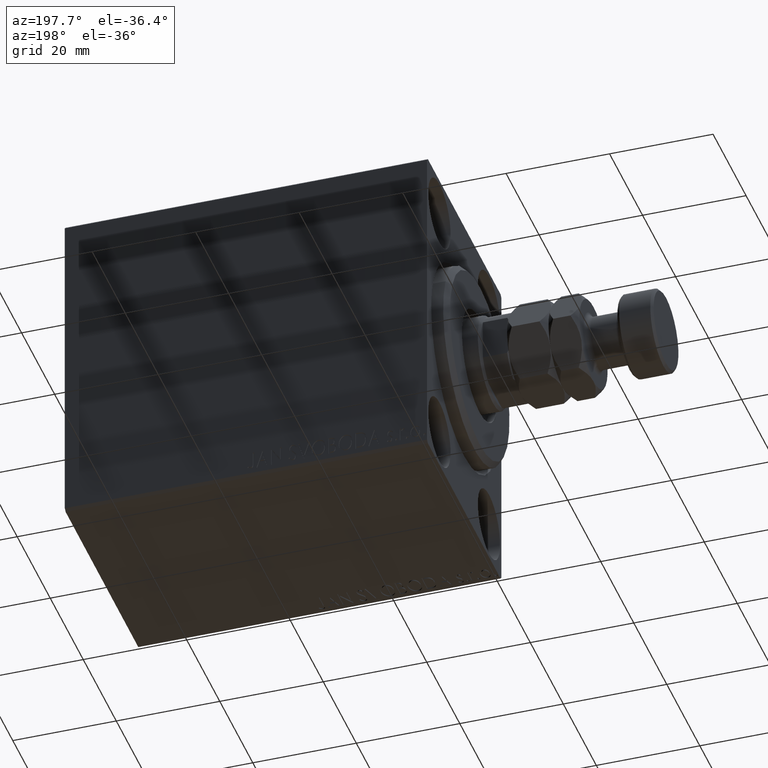
[diagram: clean part render]
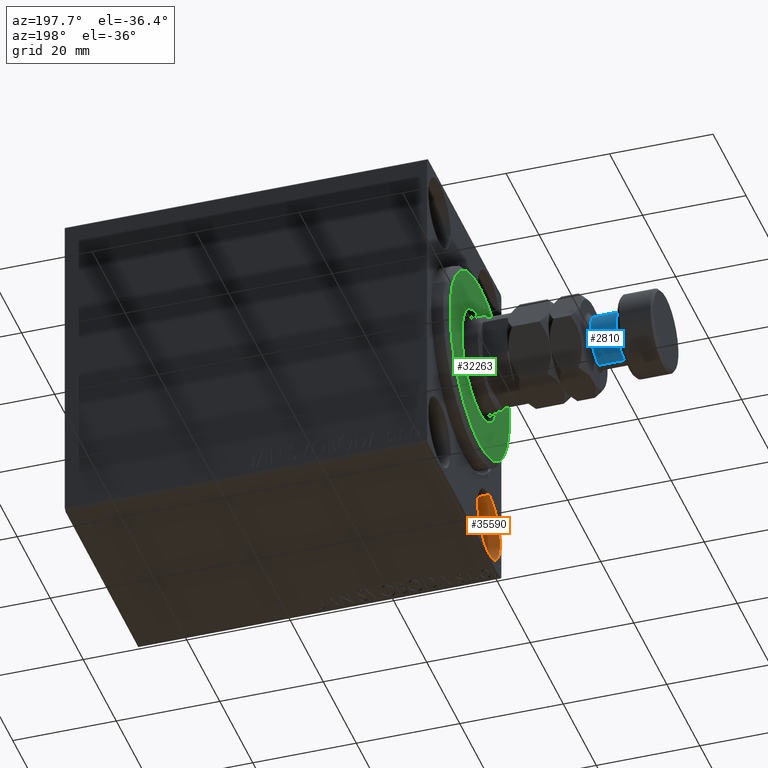
[diagram: same view with three faces highlighted in distinct colors, each labeled with its STEP entity id]
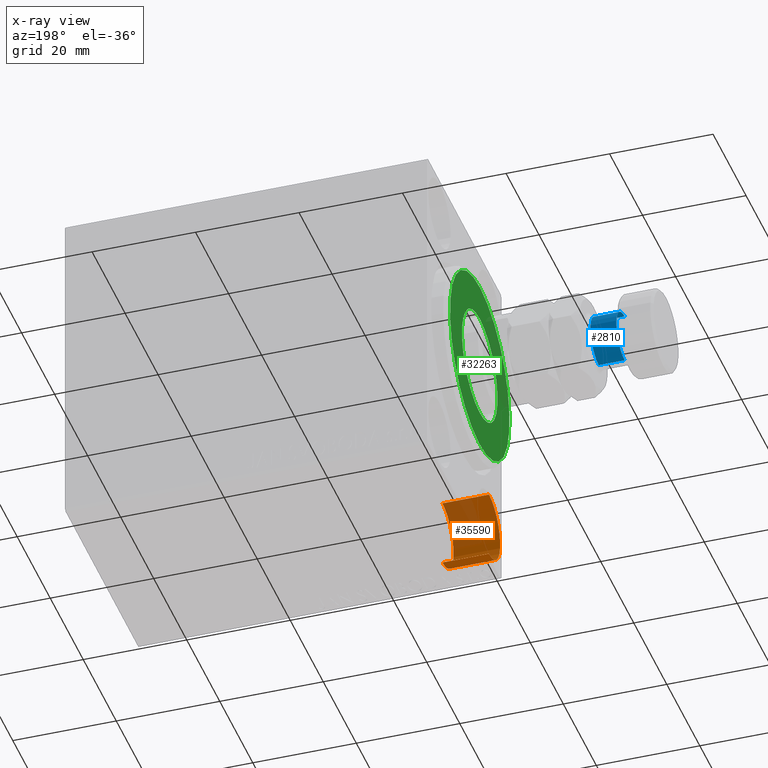
[diagram: x-ray of the same camera — body ghosted, the three highlighted faces saturated]
A machine part, auxiliary view with three faces highlighted in distinct colors.
The next image is the same camera in x-ray (body ghosted, the three faces saturated) — at least one of them is partly hidden behind the body in this view.
Their STEP definitions:

[orange] entity #35590 — the highlighted cylindrical surface (partial cylindrical patch) has radius 6.75 mm, axis along (-1, -0, -0).
#357 = CIRCLE ( 'NONE', #30429, 6.749999999999999112 ) ;
#2579 = CARTESIAN_POINT ( 'NONE',  ( 0.000000000000000000, -15.00000000000000355, -18.25000000000000355 ) ) ;
#3847 = DIRECTION ( 'NONE',  ( 0.000000000000000000, 0.000000000000000000, 1.000000000000000000 ) ) ;
#3887 = EDGE_CURVE ( 'NONE', #39911, #4370, #23063, .T. ) ;
#3963 = EDGE_CURVE ( 'NONE', #26078, #39911, #4737, .T. ) ;
#4370 = VERTEX_POINT ( 'NONE', #2579 ) ;
#4737 = LINE ( 'NONE', #26086, #40693 ) ;
#6359 = CARTESIAN_POINT ( 'NONE',  ( 0.000000000000000000, -15.00000000000000355, -31.75000000000000000 ) ) ;
#7501 = FACE_OUTER_BOUND ( 'NONE', #30754, .T. ) ;
#10427 = DIRECTION ( 'NONE',  ( 0.000000000000000000, 0.000000000000000000, 1.000000000000000000 ) ) ;
#11277 = VERTEX_POINT ( 'NONE', #12747 ) ;
#12747 = CARTESIAN_POINT ( 'NONE',  ( 9.000000000000000000, -15.00000000000000355, -18.25000000000000355 ) ) ;
#17314 = CARTESIAN_POINT ( 'NONE',  ( 9.000000000000000000, -15.00000000000000355, -25.00000000000000000 ) ) ;
#18360 = EDGE_CURVE ( 'NONE', #11277, #4370, #27211, .T. ) ;
#19737 = CARTESIAN_POINT ( 'NONE',  ( 9.000000000000000000, -15.00000000000000355, -31.75000000000000000 ) ) ;
#21048 = DIRECTION ( 'NONE',  ( -1.000000000000000000, -0.000000000000000000, -0.000000000000000000 ) ) ;
#21507 = CYLINDRICAL_SURFACE ( 'NONE', #38622, 6.749999999999999112 ) ;
#23063 = CIRCLE ( 'NONE', #45093, 6.749999999999999112 ) ;
#25189 = CARTESIAN_POINT ( 'NONE',  ( 0.000000000000000000, -15.00000000000000355, -25.00000000000000000 ) ) ;
#26078 = VERTEX_POINT ( 'NONE', #19737 ) ;
#26086 = CARTESIAN_POINT ( 'NONE',  ( 9.000000000000000000, -15.00000000000000355, -31.75000000000000000 ) ) ;
#27211 = LINE ( 'NONE', #30216, #33075 ) ;
#27294 = ORIENTED_EDGE ( 'NONE', *, *, #34565, .F. ) ;
#27680 = ORIENTED_EDGE ( 'NONE', *, *, #3963, .T. ) ;
#30216 = CARTESIAN_POINT ( 'NONE',  ( 9.000000000000000000, -15.00000000000000355, -18.25000000000000355 ) ) ;
#30429 = AXIS2_PLACEMENT_3D ( 'NONE', #17314, #42135, #10427 ) ;
#30754 = EDGE_LOOP ( 'NONE', ( #27294, #27680, #32259, #42172 ) ) ;
#32259 = ORIENTED_EDGE ( 'NONE', *, *, #3887, .T. ) ;
#33075 = VECTOR ( 'NONE', #37360, 1000.000000000000000 ) ;
#34565 = EDGE_CURVE ( 'NONE', #26078, #11277, #357, .T. ) ;
#35563 = DIRECTION ( 'NONE',  ( -1.000000000000000000, 0.000000000000000000, 0.000000000000000000 ) ) ;
#35590 = ADVANCED_FACE ( 'NONE', ( #7501 ), #21507, .F. ) ;
#37360 = DIRECTION ( 'NONE',  ( -1.000000000000000000, -0.000000000000000000, -0.000000000000000000 ) ) ;
#38622 = AXIS2_PLACEMENT_3D ( 'NONE', #41973, #21048, #41748 ) ;
#39891 = DIRECTION ( 'NONE',  ( -1.000000000000000000, -0.000000000000000000, -0.000000000000000000 ) ) ;
#39911 = VERTEX_POINT ( 'NONE', #6359 ) ;
#40693 = VECTOR ( 'NONE', #39891, 1000.000000000000000 ) ;
#41748 = DIRECTION ( 'NONE',  ( 0.000000000000000000, 0.000000000000000000, 1.000000000000000000 ) ) ;
#41973 = CARTESIAN_POINT ( 'NONE',  ( 9.000000000000000000, -15.00000000000000355, -25.00000000000000000 ) ) ;
#42135 = DIRECTION ( 'NONE',  ( -1.000000000000000000, 0.000000000000000000, 0.000000000000000000 ) ) ;
#42172 = ORIENTED_EDGE ( 'NONE', *, *, #18360, .F. ) ;
#45093 = AXIS2_PLACEMENT_3D ( 'NONE', #25189, #35563, #3847 ) ;

[blue] entity #2810 — the highlighted cylindrical surface (edge-blend (fillet) strip) has radius 5 mm, axis along (1, -0, -0).
#612 = CIRCLE ( 'NONE', #26276, 5.000000000000000000 ) ;
#633 = ORIENTED_EDGE ( 'NONE', *, *, #31399, .T. ) ;
#1052 = CARTESIAN_POINT ( 'NONE',  ( 5.000000000000000000, 6.123233995736766282E-16, 21.00000000000000000 ) ) ;
#1576 = DIRECTION ( 'NONE',  ( -0.000000000000000000, -0.000000000000000000, -1.000000000000000000 ) ) ;
#2467 = CIRCLE ( 'NONE', #6157, 5.000000000000000000 ) ;
#2676 = DIRECTION ( 'NONE',  ( 0.000000000000000000, -0.000000000000000000, 1.000000000000000000 ) ) ;
#2810 = ADVANCED_FACE ( 'NONE', ( #30720 ), #16240, .T. ) ;
#3543 = ORIENTED_EDGE ( 'NONE', *, *, #25063, .F. ) ;
#3858 = CARTESIAN_POINT ( 'NONE',  ( 5.000000000000000000, 6.123233995736766282E-16, 20.00000000000000000 ) ) ;
#5915 = CARTESIAN_POINT ( 'NONE',  ( 0.000000000000000000, 0.000000000000000000, 15.00000000000000000 ) ) ;
#6157 = AXIS2_PLACEMENT_3D ( 'NONE', #43497, #28810, #15238 ) ;
#6583 = EDGE_CURVE ( 'NONE', #11263, #8925, #2467, .T. ) ;
#8865 = LINE ( 'NONE', #1052, #40034 ) ;
#8925 = VERTEX_POINT ( 'NONE', #3858 ) ;
#9951 = ORIENTED_EDGE ( 'NONE', *, *, #11188, .T. ) ;
#11188 = EDGE_CURVE ( 'NONE', #8925, #29075, #8865, .T. ) ;
#11263 = VERTEX_POINT ( 'NONE', #16432 ) ;
#13481 = DIRECTION ( 'NONE',  ( -1.000000000000000000, 0.000000000000000000, 0.000000000000000000 ) ) ;
#15238 = DIRECTION ( 'NONE',  ( 1.000000000000000000, 0.000000000000000000, 0.000000000000000000 ) ) ;
#15311 = DIRECTION ( 'NONE',  ( -0.000000000000000000, -0.000000000000000000, -1.000000000000000000 ) ) ;
#16240 = CYLINDRICAL_SURFACE ( 'NONE', #28921, 5.000000000000000000 ) ;
#16432 = CARTESIAN_POINT ( 'NONE',  ( -5.000000000000000000, 0.000000000000000000, 20.00000000000000000 ) ) ;
#25063 = EDGE_CURVE ( 'NONE', #11263, #35957, #32405, .T. ) ;
#26276 = AXIS2_PLACEMENT_3D ( 'NONE', #5915, #2676, #36958 ) ;
#26519 = VECTOR ( 'NONE', #1576, 1000.000000000000000 ) ;
#27508 = EDGE_LOOP ( 'NONE', ( #28575, #9951, #633, #3543 ) ) ;
#28575 = ORIENTED_EDGE ( 'NONE', *, *, #6583, .T. ) ;
#28810 = DIRECTION ( 'NONE',  ( -0.000000000000000000, -0.000000000000000000, -1.000000000000000000 ) ) ;
#28921 = AXIS2_PLACEMENT_3D ( 'NONE', #44056, #30489, #13481 ) ;
#29075 = VERTEX_POINT ( 'NONE', #33830 ) ;
#30489 = DIRECTION ( 'NONE',  ( -0.000000000000000000, -0.000000000000000000, -1.000000000000000000 ) ) ;
#30720 = FACE_OUTER_BOUND ( 'NONE', #27508, .T. ) ;
#31399 = EDGE_CURVE ( 'NONE', #29075, #35957, #612, .T. ) ;
#32405 = LINE ( 'NONE', #40184, #26519 ) ;
#33830 = CARTESIAN_POINT ( 'NONE',  ( 5.000000000000000000, 6.123233995736766282E-16, 15.00000000000000000 ) ) ;
#35957 = VERTEX_POINT ( 'NONE', #39999 ) ;
#36958 = DIRECTION ( 'NONE',  ( 1.000000000000000000, 0.000000000000000000, 0.000000000000000000 ) ) ;
#39999 = CARTESIAN_POINT ( 'NONE',  ( -5.000000000000000000, 0.000000000000000000, 15.00000000000000000 ) ) ;
#40034 = VECTOR ( 'NONE', #15311, 1000.000000000000000 ) ;
#40184 = CARTESIAN_POINT ( 'NONE',  ( -5.000000000000000000, 0.000000000000000000, 21.00000000000000000 ) ) ;
#43497 = CARTESIAN_POINT ( 'NONE',  ( 0.000000000000000000, 0.000000000000000000, 20.00000000000000000 ) ) ;
#44056 = CARTESIAN_POINT ( 'NONE',  ( 0.000000000000000000, 0.000000000000000000, 21.00000000000000000 ) ) ;

[green] entity #32263 — the highlighted planar face has unit normal (-1, 0, 0).
#3481 = EDGE_CURVE ( 'NONE', #36549, #34968, #23756, .T. ) ;
#5106 = DIRECTION ( 'NONE',  ( 1.000000000000000000, -0.000000000000000000, 0.000000000000000000 ) ) ;
#6431 = CARTESIAN_POINT ( 'NONE',  ( 3.000000000000000000, 0.000000000000000000, 0.000000000000000000 ) ) ;
#6762 = FACE_OUTER_BOUND ( 'NONE', #30631, .T. ) ;
#7943 = CARTESIAN_POINT ( 'NONE',  ( 3.000000000000000000, 0.000000000000000000, 0.000000000000000000 ) ) ;
#8143 = ORIENTED_EDGE ( 'NONE', *, *, #3481, .T. ) ;
#9389 = CIRCLE ( 'NONE', #41673, 17.99999999999999645 ) ;
#10146 = AXIS2_PLACEMENT_3D ( 'NONE', #7943, #21951, #44010 ) ;
#10209 = FACE_BOUND ( 'NONE', #17484, .T. ) ;
#10297 = CARTESIAN_POINT ( 'NONE',  ( 3.000000000000000000, 2.265596578422603002E-15, -17.99999999999999645 ) ) ;
#10309 = CARTESIAN_POINT ( 'NONE',  ( 3.000000000000000000, 0.000000000000000000, 17.99999999999999645 ) ) ;
#10671 = CARTESIAN_POINT ( 'NONE',  ( 3.000000000000000000, 0.000000000000000000, 0.000000000000000000 ) ) ;
#11533 = DIRECTION ( 'NONE',  ( 0.000000000000000000, 0.000000000000000000, -1.000000000000000000 ) ) ;
#12258 = DIRECTION ( 'NONE',  ( 0.000000000000000000, 0.000000000000000000, -1.000000000000000000 ) ) ;
#13648 = ORIENTED_EDGE ( 'NONE', *, *, #21929, .T. ) ;
#13784 = ORIENTED_EDGE ( 'NONE', *, *, #42660, .T. ) ;
#17484 = EDGE_LOOP ( 'NONE', ( #8143, #13648 ) ) ;
#17846 = CARTESIAN_POINT ( 'NONE',  ( 3.000000000000000000, 0.000000000000000000, 10.75000000000000000 ) ) ;
#18383 = ORIENTED_EDGE ( 'NONE', *, *, #32148, .T. ) ;
#20082 = AXIS2_PLACEMENT_3D ( 'NONE', #6431, #34248, #41575 ) ;
#21231 = PLANE ( 'NONE',  #24814 ) ;
#21929 = EDGE_CURVE ( 'NONE', #34968, #36549, #33072, .T. ) ;
#21951 = DIRECTION ( 'NONE',  ( 1.000000000000000000, -0.000000000000000000, 0.000000000000000000 ) ) ;
#23756 = CIRCLE ( 'NONE', #20082, 10.75000000000000000 ) ;
#23921 = CARTESIAN_POINT ( 'NONE',  ( 3.000000000000000000, 1.316495309083404223E-15, -10.75000000000000000 ) ) ;
#24814 = AXIS2_PLACEMENT_3D ( 'NONE', #10671, #35044, #38489 ) ;
#26000 = CARTESIAN_POINT ( 'NONE',  ( 3.000000000000000000, 0.000000000000000000, 0.000000000000000000 ) ) ;
#29380 = AXIS2_PLACEMENT_3D ( 'NONE', #44414, #40982, #12258 ) ;
#30631 = EDGE_LOOP ( 'NONE', ( #13784, #18383 ) ) ;
#32148 = EDGE_CURVE ( 'NONE', #37960, #44983, #35137, .T. ) ;
#32263 = ADVANCED_FACE ( 'NONE', ( #6762, #10209 ), #21231, .T. ) ;
#33072 = CIRCLE ( 'NONE', #29380, 10.75000000000000000 ) ;
#34248 = DIRECTION ( 'NONE',  ( -1.000000000000000000, 0.000000000000000000, -0.000000000000000000 ) ) ;
#34968 = VERTEX_POINT ( 'NONE', #23921 ) ;
#35044 = DIRECTION ( 'NONE',  ( 1.000000000000000000, -0.000000000000000000, 0.000000000000000000 ) ) ;
#35137 = CIRCLE ( 'NONE', #10146, 17.99999999999999645 ) ;
#36549 = VERTEX_POINT ( 'NONE', #17846 ) ;
#37960 = VERTEX_POINT ( 'NONE', #10297 ) ;
#38489 = DIRECTION ( 'NONE',  ( 0.000000000000000000, 0.000000000000000000, -1.000000000000000000 ) ) ;
#40982 = DIRECTION ( 'NONE',  ( -1.000000000000000000, 0.000000000000000000, -0.000000000000000000 ) ) ;
#41575 = DIRECTION ( 'NONE',  ( 0.000000000000000000, 0.000000000000000000, -1.000000000000000000 ) ) ;
#41673 = AXIS2_PLACEMENT_3D ( 'NONE', #26000, #5106, #11533 ) ;
#42660 = EDGE_CURVE ( 'NONE', #44983, #37960, #9389, .T. ) ;
#44010 = DIRECTION ( 'NONE',  ( 0.000000000000000000, 0.000000000000000000, -1.000000000000000000 ) ) ;
#44414 = CARTESIAN_POINT ( 'NONE',  ( 3.000000000000000000, 0.000000000000000000, 0.000000000000000000 ) ) ;
#44983 = VERTEX_POINT ( 'NONE', #10309 ) ;